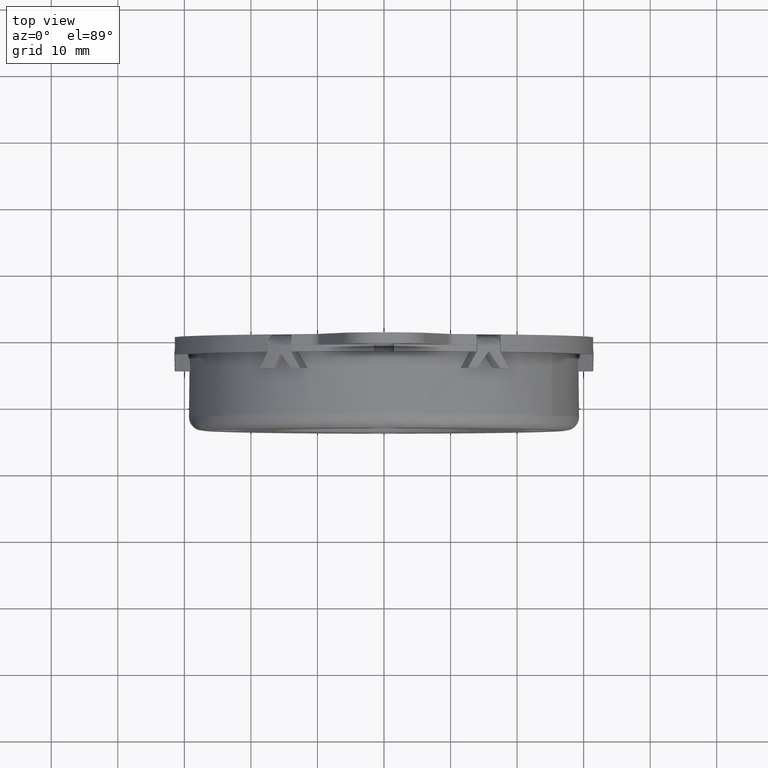
[diagram: clean part render]
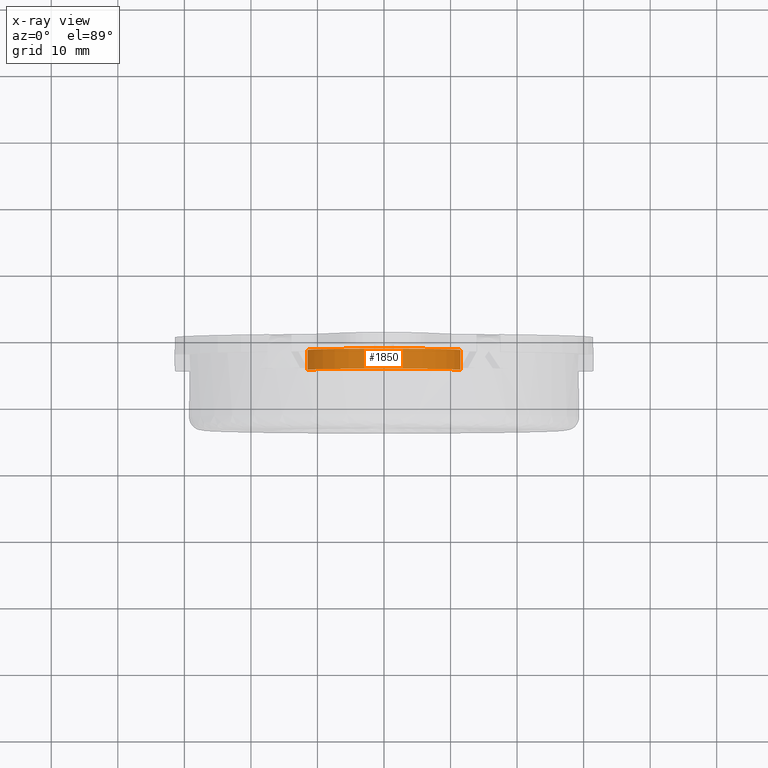
[diagram: x-ray — body ghosted, one internal face saturated and labeled with its STEP entity id]
A machine part, top view, then the same camera in x-ray: the body is ghosted and one INTERNAL B-rep face — a face not visible from any outside direction — is saturated and labeled: STEP entity #1850.
In plain terms, the highlighted face is a freeform B-spline surface patch.
Its self-contained STEP definition (entity closure, byte-faithful):
#1591=CARTESIAN_POINT('',(11.478550181847510,-4.900000000000119,-0.702058204715606));
#1592=VERTEX_POINT('',#1591);
#1606=CARTESIAN_POINT('',(0.0,-4.900000000000119,11.500000000000000));
#1607=VERTEX_POINT('',#1606);
#1608=CARTESIAN_POINT('',(11.478550181847517,-4.900000000000119,-0.702058204715607));
#1609=CARTESIAN_POINT('',(11.500000000000004,-4.900000000000119,-0.351356777966239));
#1610=CARTESIAN_POINT('',(11.500000000000000,-4.900000000000119,3.310987E-016));
#1611=CARTESIAN_POINT('',(11.500000000000000,-4.900000000000120,11.500000000000000));
#1612=CARTESIAN_POINT('',(0.0,-4.900000000000119,11.500000000000000));
#1620=(BOUNDED_CURVE()B_SPLINE_CURVE(2,(#1608,#1609,#1610,#1611,#1612),.UNSPECIFIED.,.F.,.U.)B_SPLINE_CURVE_WITH_KNOTS((3,2,3),(0.239332962240995,0.250000000000000,0.500000000000000),.UNSPECIFIED.)CURVE()GEOMETRIC_REPRESENTATION_ITEM()RATIONAL_B_SPLINE_CURVE((0.976072041671116,0.987502787902241,1.0,0.707106781186548,1.0))REPRESENTATION_ITEM(''));
#1621=EDGE_CURVE('',#1592,#1607,#1620,.T.);
#1623=CARTESIAN_POINT('',(-11.478550181847510,-4.900000000000119,0.702058204715609));
#1624=VERTEX_POINT('',#1623);
#1625=CARTESIAN_POINT('',(0.0,-4.900000000000119,11.500000000000000));
#1626=CARTESIAN_POINT('',(-10.818119769354347,-4.900000000000119,11.500000000000000));
#1627=CARTESIAN_POINT('',(-11.478550181847506,-4.900000000000120,0.702058204715611));
#1635=(BOUNDED_CURVE()B_SPLINE_CURVE(2,(#1625,#1626,#1627),.UNSPECIFIED.,.F.,.U.)B_SPLINE_CURVE_WITH_KNOTS((3,3),(0.500000000000000,0.739332962240995),.UNSPECIFIED.)CURVE()GEOMETRIC_REPRESENTATION_ITEM()RATIONAL_B_SPLINE_CURVE((1.0,0.719603993284306,0.976072041671116))REPRESENTATION_ITEM(''));
#1636=EDGE_CURVE('',#1607,#1624,#1635,.T.);
#1784=CARTESIAN_POINT('',(11.478550181851469,-1.825000000000119,-0.702058204650855));
#1785=CARTESIAN_POINT('',(12.180608386502323,-1.825000000000120,10.776491977200612));
#1786=CARTESIAN_POINT('',(0.702058204650855,-1.825000000000119,11.478550181851469));
#1787=CARTESIAN_POINT('',(-10.776491977200612,-1.825000000000120,12.180608386502323));
#1788=CARTESIAN_POINT('',(-11.478550181851469,-1.825000000000119,0.702058204650856));
#1789=CARTESIAN_POINT('',(11.478550181851469,-4.976875000000121,-0.702058204650855));
#1790=CARTESIAN_POINT('',(12.180608386502323,-4.976875000000121,10.776491977200612));
#1791=CARTESIAN_POINT('',(0.702058204650855,-4.976875000000121,11.478550181851469));
#1792=CARTESIAN_POINT('',(-10.776491977200612,-4.976875000000121,12.180608386502323));
#1793=CARTESIAN_POINT('',(-11.478550181851469,-4.976875000000121,0.702058204650856));
#1801=(BOUNDED_SURFACE()B_SPLINE_SURFACE(2,1,((#1784,#1789),(#1785,#1790),(#1786,#1791),(#1787,#1792),(#1788,#1793)),.UNSPECIFIED.,.F.,.F.,.U.)B_SPLINE_SURFACE_WITH_KNOTS((3,2,3),(2,2),(0.0,19.053823869162368,38.107647738324737),(0.0,3.151875000000002),.UNSPECIFIED.)GEOMETRIC_REPRESENTATION_ITEM()RATIONAL_B_SPLINE_SURFACE(((1.0,1.0),(0.707106781186548,0.707106781186548),(1.0,1.0),(0.707106781186548,0.707106781186548),(1.0,1.0)))REPRESENTATION_ITEM('')SURFACE());
#1802=ORIENTED_EDGE('',*,*,#1621,.F.);
#1803=CARTESIAN_POINT('',(11.478550181847510,-1.900000000000120,-0.702058204715606));
#1804=VERTEX_POINT('',#1803);
#1805=CARTESIAN_POINT('',(11.478550181847510,-1.900000000000120,-0.702058204715606));
#1806=CARTESIAN_POINT('',(11.478550181847510,-4.900000000000119,-0.702058204715606));
#1807=QUASI_UNIFORM_CURVE('',1,(#1805,#1806),.UNSPECIFIED.,.F.,.U.);
#1808=EDGE_CURVE('',#1804,#1592,#1807,.T.);
#1809=ORIENTED_EDGE('',*,*,#1808,.F.);
#1810=CARTESIAN_POINT('',(0.0,-1.900000000000120,11.500000000000000));
#1811=VERTEX_POINT('',#1810);
#1812=CARTESIAN_POINT('',(11.478550181847517,-1.900000000000120,-0.702058204715607));
#1813=CARTESIAN_POINT('',(11.500000000000004,-1.900000000000120,-0.351356777966239));
#1814=CARTESIAN_POINT('',(11.500000000000000,-1.900000000000120,3.310987E-016));
#1815=CARTESIAN_POINT('',(11.500000000000000,-1.900000000000120,11.500000000000000));
#1816=CARTESIAN_POINT('',(0.0,-1.900000000000120,11.500000000000000));
#1824=(BOUNDED_CURVE()B_SPLINE_CURVE(2,(#1812,#1813,#1814,#1815,#1816),.UNSPECIFIED.,.F.,.U.)B_SPLINE_CURVE_WITH_KNOTS((3,2,3),(0.239332962240995,0.250000000000000,0.500000000000000),.UNSPECIFIED.)CURVE()GEOMETRIC_REPRESENTATION_ITEM()RATIONAL_B_SPLINE_CURVE((0.976072041671116,0.987502787902241,1.0,0.707106781186548,1.0))REPRESENTATION_ITEM(''));
#1825=EDGE_CURVE('',#1804,#1811,#1824,.T.);
#1826=ORIENTED_EDGE('',*,*,#1825,.T.);
#1827=CARTESIAN_POINT('',(-11.478550181847510,-1.900000000000120,0.702058204715609));
#1828=VERTEX_POINT('',#1827);
#1829=CARTESIAN_POINT('',(0.0,-1.900000000000120,11.500000000000000));
#1830=CARTESIAN_POINT('',(-10.818119769354347,-1.900000000000120,11.500000000000000));
#1831=CARTESIAN_POINT('',(-11.478550181847506,-1.900000000000121,0.702058204715611));
#1839=(BOUNDED_CURVE()B_SPLINE_CURVE(2,(#1829,#1830,#1831),.UNSPECIFIED.,.F.,.U.)B_SPLINE_CURVE_WITH_KNOTS((3,3),(0.500000000000000,0.739332962240995),.UNSPECIFIED.)CURVE()GEOMETRIC_REPRESENTATION_ITEM()RATIONAL_B_SPLINE_CURVE((1.0,0.719603993284306,0.976072041671116))REPRESENTATION_ITEM(''));
#1840=EDGE_CURVE('',#1811,#1828,#1839,.T.);
#1841=ORIENTED_EDGE('',*,*,#1840,.T.);
#1842=CARTESIAN_POINT('',(-11.478550181847510,-1.900000000000120,0.702058204715609));
#1843=CARTESIAN_POINT('',(-11.478550181847510,-4.900000000000119,0.702058204715609));
#1844=QUASI_UNIFORM_CURVE('',1,(#1842,#1843),.UNSPECIFIED.,.F.,.U.);
#1845=EDGE_CURVE('',#1828,#1624,#1844,.T.);
#1846=ORIENTED_EDGE('',*,*,#1845,.T.);
#1847=ORIENTED_EDGE('',*,*,#1636,.F.);
#1848=EDGE_LOOP('',(#1802,#1809,#1826,#1841,#1846,#1847));
#1849=FACE_OUTER_BOUND('',#1848,.T.);
#1850=ADVANCED_FACE('',(#1849),#1801,.T.);